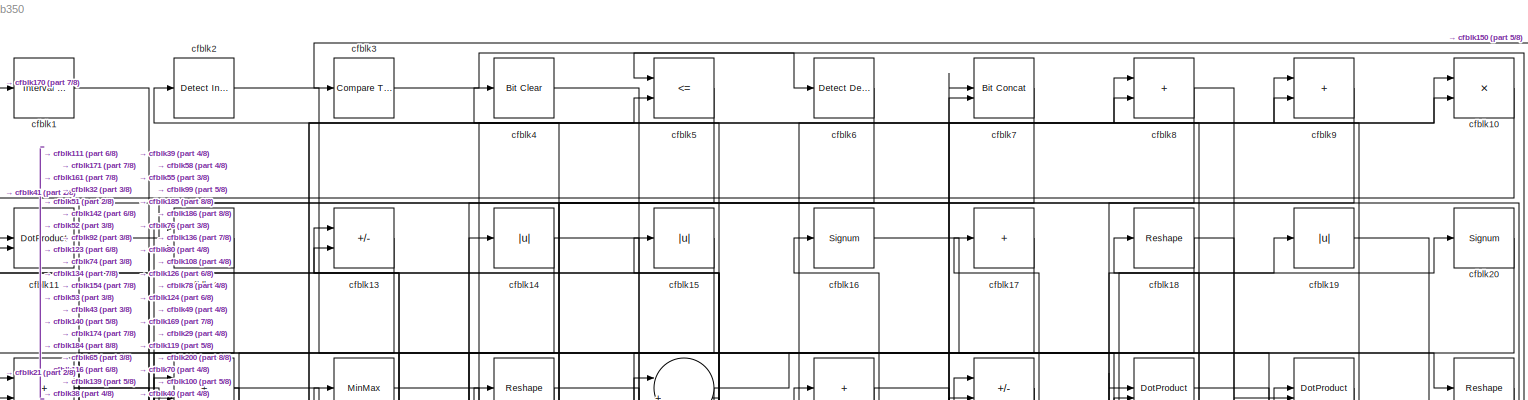
[diagram: root canvas - part 1/8, full width, top band]
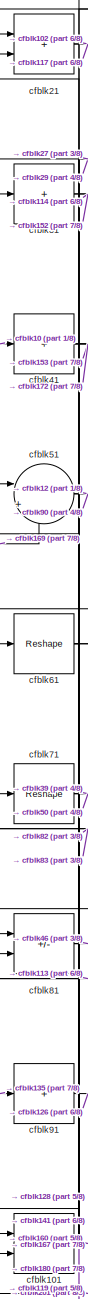
[diagram: root canvas - part 2/8, top left region]
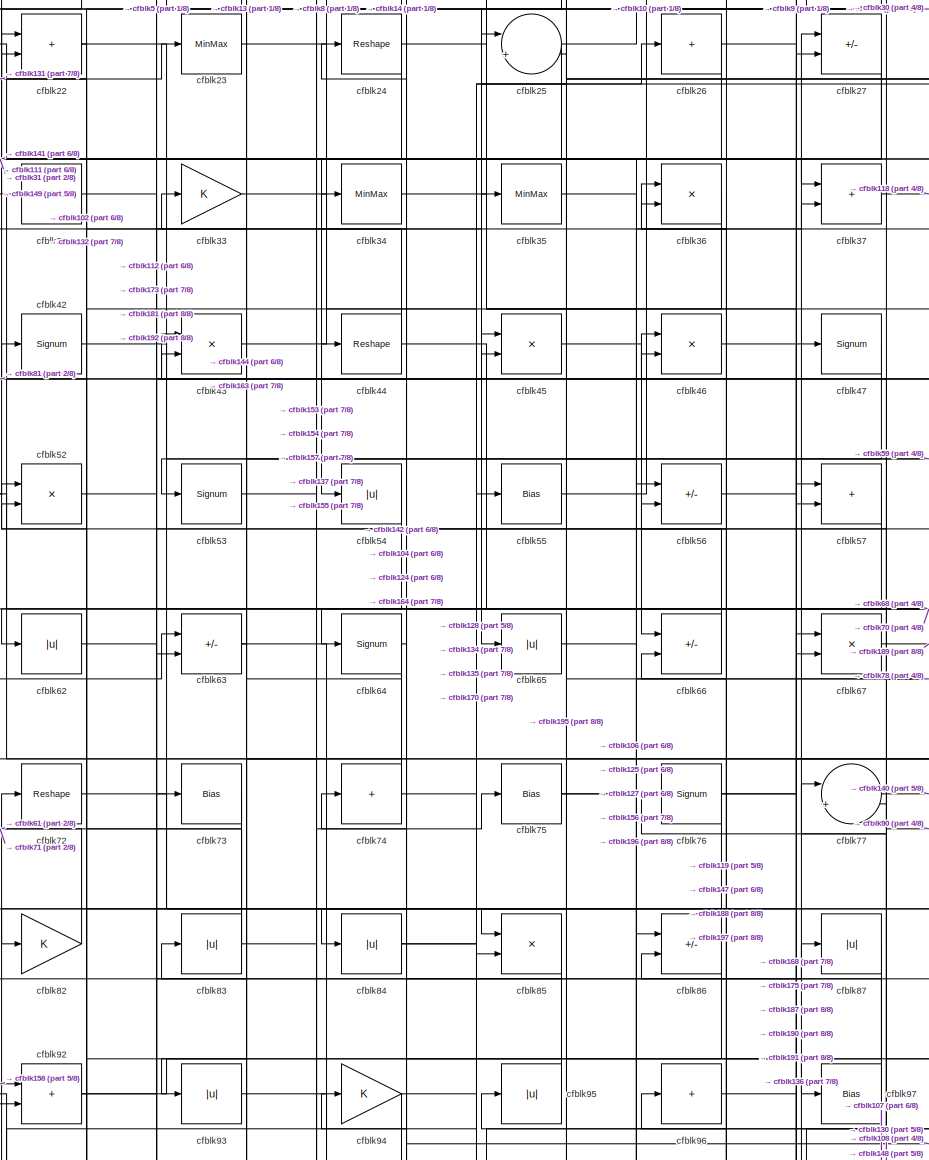
[diagram: root canvas - part 3/8, top center region]
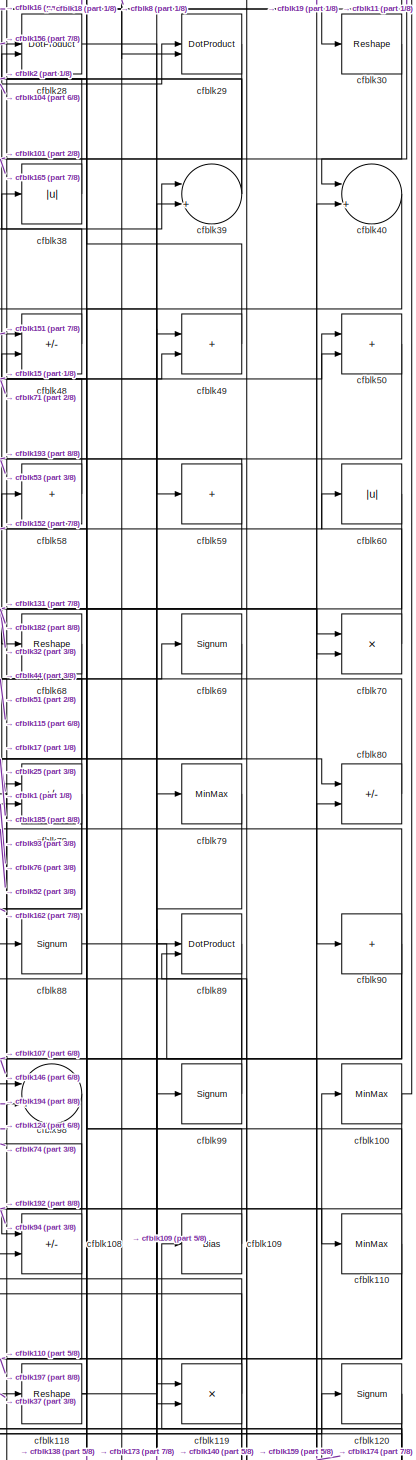
[diagram: root canvas - part 4/8, middle right region]
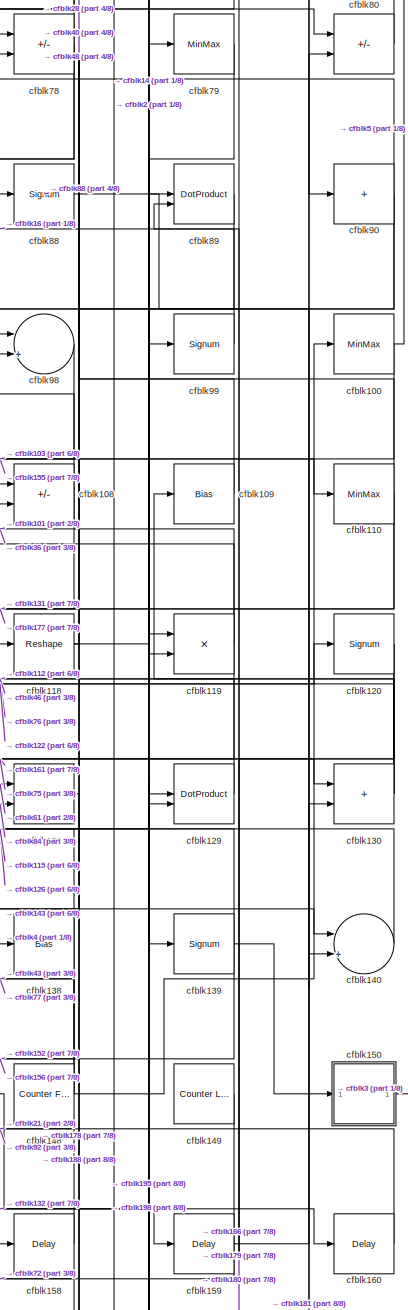
[diagram: root canvas - part 5/8, middle right region]
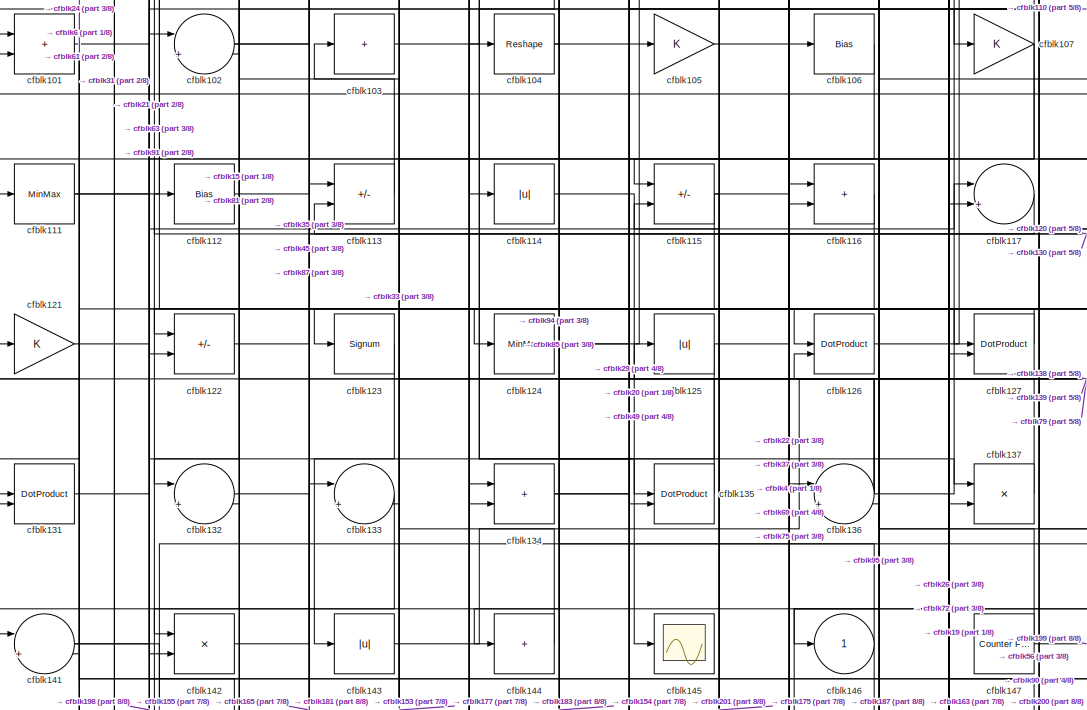
[diagram: root canvas - part 6/8, central region]
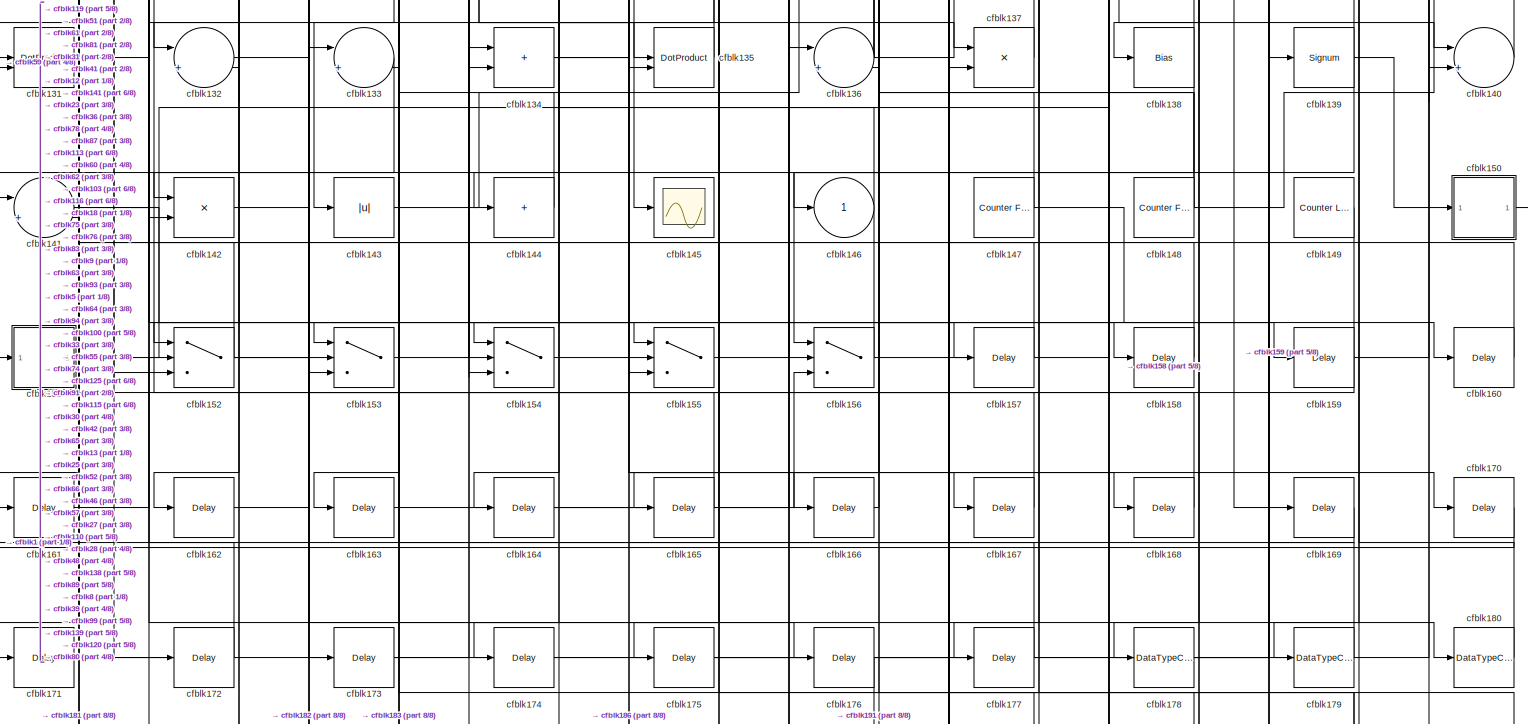
[diagram: root canvas - part 7/8, full width, bottom band]
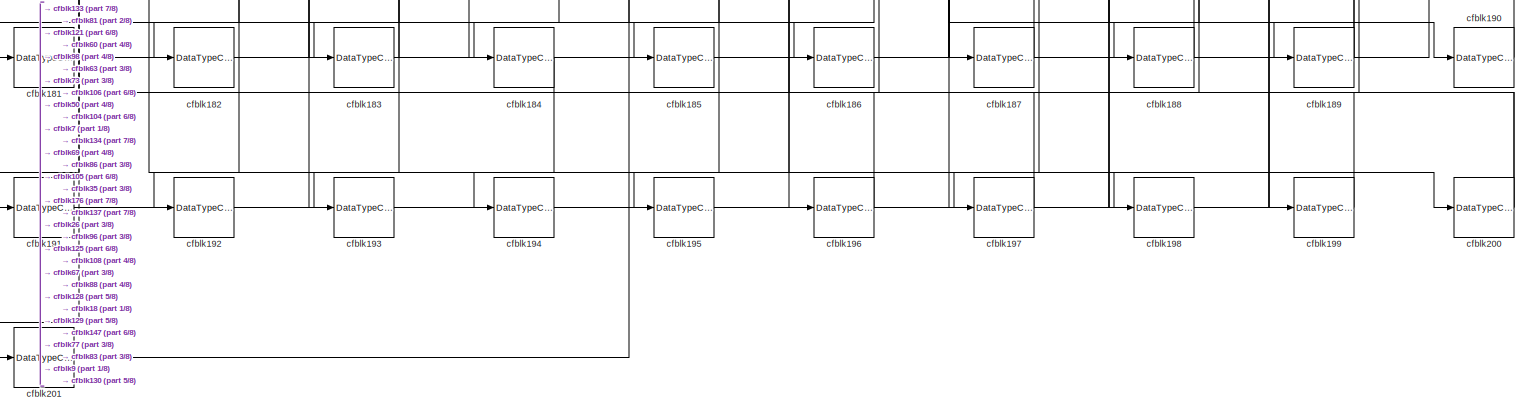
[diagram: root canvas - part 8/8, full width, bottom band]
MODEL slx_3f8519a2b350
KIND model
CONFIG AbsTol = auto
CONFIG EnableMultiTasking = off
CONFIG FixedStep = auto
CONFIG MaxStep = auto
CONFIG MinStep = auto
CONFIG RelTol = 1e-3
CONFIG SampleTimeConstraint = Unconstrained
CONFIG SolverName = VariableStepAuto
CONFIG StartTime = 0.0
CONFIG StopTime = 10.0
BLOCK [Reference] cfblk1  REF=hdlsllib/Logic and Bit
Operations/Interval Test
  SourceBlock = hdlsllib/Logic and Bit\nOperations/Interval Test
  SourceType = Interval Test
BLOCK [Product] cfblk10
  Inputs = */
  RndMeth = Zero
  SaturateOnIntegerOverflow = on
BLOCK [MinMax] cfblk100
BLOCK [Sum] cfblk101
  IconShape = rectangular
BLOCK [Sum] cfblk102
  Inputs = |++
BLOCK [Sum] cfblk103
  IconShape = rectangular
  Inputs = +
BLOCK [Reshape] cfblk104
BLOCK [Gain] cfblk105
BLOCK [Bias] cfblk106
  Bias = 0.0
  SaturateOnIntegerOverflow = off
BLOCK [Gain] cfblk107
BLOCK [Sum] cfblk108
  IconShape = rectangular
  Inputs = +-
BLOCK [Bias] cfblk109
  Bias = 0.0
  SaturateOnIntegerOverflow = off
BLOCK [DotProduct] cfblk11
  OutDataTypeStr = Inherit: Inherit via internal rule
BLOCK [MinMax] cfblk110
BLOCK [MinMax] cfblk111
BLOCK [Bias] cfblk112
  Bias = 0.0
  SaturateOnIntegerOverflow = off
BLOCK [Sum] cfblk113
  IconShape = rectangular
  Inputs = +-
BLOCK [Abs] cfblk114
  SaturateOnIntegerOverflow = off
BLOCK [Sum] cfblk115
  IconShape = rectangular
  Inputs = +-
BLOCK [Sum] cfblk116
  IconShape = rectangular
BLOCK [Sum] cfblk117
  Inputs = |++
BLOCK [Reshape] cfblk118
BLOCK [Product] cfblk119
  Inputs = */
  RndMeth = Zero
  SaturateOnIntegerOverflow = on
BLOCK [Product] cfblk12
  Inputs = */
  RndMeth = Zero
  SaturateOnIntegerOverflow = on
BLOCK [Signum] cfblk120
BLOCK [Gain] cfblk121
BLOCK [Sum] cfblk122
  IconShape = rectangular
  Inputs = +-
BLOCK [Signum] cfblk123
BLOCK [MinMax] cfblk124
BLOCK [Abs] cfblk125
  SaturateOnIntegerOverflow = off
BLOCK [DotProduct] cfblk126
  OutDataTypeStr = Inherit: Inherit via internal rule
BLOCK [DotProduct] cfblk127
  OutDataTypeStr = Inherit: Inherit via internal rule
BLOCK [Sum] cfblk128
  IconShape = rectangular
BLOCK [DotProduct] cfblk129
  OutDataTypeStr = Inherit: Inherit via internal rule
BLOCK [Sum] cfblk13
  IconShape = rectangular
  Inputs = +-
BLOCK [Sum] cfblk130
  IconShape = rectangular
BLOCK [DotProduct] cfblk131
  OutDataTypeStr = Inherit: Inherit via internal rule
BLOCK [Sum] cfblk132
  Inputs = |++
BLOCK [Sum] cfblk133
  Inputs = |++
BLOCK [Sum] cfblk134
  IconShape = rectangular
BLOCK [DotProduct] cfblk135
  OutDataTypeStr = Inherit: Inherit via internal rule
BLOCK [Sum] cfblk136
  Inputs = |++
BLOCK [Product] cfblk137
  Inputs = */
  RndMeth = Zero
  SaturateOnIntegerOverflow = on
BLOCK [Bias] cfblk138
  Bias = 0.0
  SaturateOnIntegerOverflow = off
BLOCK [Signum] cfblk139
BLOCK [Abs] cfblk14
  SaturateOnIntegerOverflow = off
BLOCK [Sum] cfblk140
  Inputs = |++
BLOCK [Sum] cfblk141
  Inputs = |++
BLOCK [Product] cfblk142
  Inputs = */
  RndMeth = Zero
  SaturateOnIntegerOverflow = on
BLOCK [Abs] cfblk143
  SaturateOnIntegerOverflow = off
BLOCK [Sum] cfblk144
  IconShape = rectangular
  Inputs = +
BLOCK [Scope] cfblk145
  Floating = off
  NumInputPorts = 1
  ScopeSpecificationString = Simulink.scopes.TimeScopeBlockCfg('CurrentConfiguration', extmgr.ConfigurationSet(extmgr.Configuration('Core','General UI',true),extmgr.Configuration('Core','Source UI',true),extmgr.Configuration('Sources','WiredSimulink',true,'DataLoggingVariableName','ScopeData2','DataLoggingSaveFormat','Array','DataLoggingLimitDataPoints',true,'DataLoggingDecimation','1'),extmgr.Configuration('Visuals','Time Do...<+868ch>
BLOCK [Outport] cfblk146
  VectorParamsAs1DForOutWhenUnconnected = off
BLOCK [Reference] cfblk147  REF=hdlsllib/Sources/Counter
Free-Running
  SourceBlock = hdlsllib/Sources/Counter\nFree-Running
  SourceType = Counter Free-Running
BLOCK [Reference] cfblk148  REF=hdlsllib/Sources/Counter
Free-Running
  SourceBlock = hdlsllib/Sources/Counter\nFree-Running
  SourceType = Counter Free-Running
BLOCK [Reference] cfblk149  REF=hdlsllib/Sources/Counter
Limited
  SourceBlock = hdlsllib/Sources/Counter\nLimited
  SourceType = Counter Limited
BLOCK [Abs] cfblk15
  SaturateOnIntegerOverflow = off
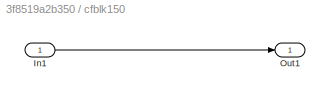
BLOCK [SubSystem] cfblk150
  LibrarySourceBlock = hdlsllib/Ports &\nSubsystems/Subsystem
BLOCK [Inport] cfblk150/In1
BLOCK [Outport] cfblk150/Out1
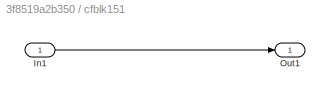
BLOCK [SubSystem] cfblk151
  LibrarySourceBlock = hdlsllib/Ports &\nSubsystems/Subsystem
BLOCK [Inport] cfblk151/In1
BLOCK [Outport] cfblk151/Out1
BLOCK [Switch] cfblk152
  InputSameDT = off
  SaturateOnIntegerOverflow = off
BLOCK [Switch] cfblk153
  InputSameDT = off
  SaturateOnIntegerOverflow = off
BLOCK [Switch] cfblk154
  InputSameDT = off
  SaturateOnIntegerOverflow = off
BLOCK [Switch] cfblk155
  InputSameDT = off
  SaturateOnIntegerOverflow = off
BLOCK [Switch] cfblk156
  InputSameDT = off
  SaturateOnIntegerOverflow = off
BLOCK [Delay] cfblk157
  InputPortMap = u0
  SampleTime = 1
BLOCK [Delay] cfblk158
  InputPortMap = u0
  SampleTime = 1
BLOCK [Delay] cfblk159
  InputPortMap = u0
  SampleTime = 1
BLOCK [Signum] cfblk16
BLOCK [Delay] cfblk160
  InputPortMap = u0
  SampleTime = 1
BLOCK [Delay] cfblk161
  InputPortMap = u0
  SampleTime = 1
BLOCK [Delay] cfblk162
  InputPortMap = u0
  SampleTime = 1
BLOCK [Delay] cfblk163
  InputPortMap = u0
  SampleTime = 1
BLOCK [Delay] cfblk164
  InputPortMap = u0
  SampleTime = 1
BLOCK [Delay] cfblk165
  InputPortMap = u0
  SampleTime = 1
BLOCK [Delay] cfblk166
  InputPortMap = u0
  SampleTime = 1
BLOCK [Delay] cfblk167
  InputPortMap = u0
  SampleTime = 1
BLOCK [Delay] cfblk168
  InputPortMap = u0
  SampleTime = 1
BLOCK [Delay] cfblk169
  InputPortMap = u0
  SampleTime = 1
BLOCK [Sum] cfblk17
  IconShape = rectangular
  Inputs = +
BLOCK [Delay] cfblk170
  InputPortMap = u0
  SampleTime = 1
BLOCK [Delay] cfblk171
  InputPortMap = u0
  SampleTime = 1
BLOCK [Delay] cfblk172
  InputPortMap = u0
  SampleTime = 1
BLOCK [Delay] cfblk173
  InputPortMap = u0
  SampleTime = 1
BLOCK [Delay] cfblk174
  InputPortMap = u0
  SampleTime = 1
BLOCK [Delay] cfblk175
  InputPortMap = u0
  SampleTime = 1
BLOCK [Delay] cfblk176
  InputPortMap = u0
  SampleTime = 1
BLOCK [Delay] cfblk177
  InputPortMap = u0
  SampleTime = 1
BLOCK [DataTypeConversion] cfblk178
  OutDataTypeStr = uint8
  RndMeth = Floor
  SaturateOnIntegerOverflow = off
BLOCK [DataTypeConversion] cfblk179
  OutDataTypeStr = uint8
  RndMeth = Floor
  SaturateOnIntegerOverflow = off
BLOCK [Reshape] cfblk18
BLOCK [DataTypeConversion] cfblk180
  OutDataTypeStr = uint8
  RndMeth = Floor
  SaturateOnIntegerOverflow = off
BLOCK [DataTypeConversion] cfblk181
  RndMeth = Floor
  SaturateOnIntegerOverflow = off
BLOCK [DataTypeConversion] cfblk182
  OutDataTypeStr = uint8
  RndMeth = Floor
  SaturateOnIntegerOverflow = off
BLOCK [DataTypeConversion] cfblk183
  OutDataTypeStr = uint8
  RndMeth = Floor
  SaturateOnIntegerOverflow = off
BLOCK [DataTypeConversion] cfblk184
  OutDataTypeStr = uint8
  RndMeth = Floor
  SaturateOnIntegerOverflow = off
BLOCK [DataTypeConversion] cfblk185
  OutDataTypeStr = uint8
  RndMeth = Floor
  SaturateOnIntegerOverflow = off
BLOCK [DataTypeConversion] cfblk186
  OutDataTypeStr = uint8
  RndMeth = Floor
  SaturateOnIntegerOverflow = off
BLOCK [DataTypeConversion] cfblk187
  OutDataTypeStr = uint8
  RndMeth = Floor
  SaturateOnIntegerOverflow = off
BLOCK [DataTypeConversion] cfblk188
  OutDataTypeStr = uint8
  RndMeth = Floor
  SaturateOnIntegerOverflow = off
BLOCK [DataTypeConversion] cfblk189
  RndMeth = Floor
  SaturateOnIntegerOverflow = off
BLOCK [Abs] cfblk19
  SaturateOnIntegerOverflow = off
BLOCK [DataTypeConversion] cfblk190
  OutDataTypeStr = uint8
  RndMeth = Floor
  SaturateOnIntegerOverflow = off
BLOCK [DataTypeConversion] cfblk191
  OutDataTypeStr = uint8
  RndMeth = Floor
  SaturateOnIntegerOverflow = off
BLOCK [DataTypeConversion] cfblk192
  RndMeth = Floor
  SaturateOnIntegerOverflow = off
BLOCK [DataTypeConversion] cfblk193
  OutDataTypeStr = uint8
  RndMeth = Floor
  SaturateOnIntegerOverflow = off
BLOCK [DataTypeConversion] cfblk194
  OutDataTypeStr = uint8
  RndMeth = Floor
  SaturateOnIntegerOverflow = off
BLOCK [DataTypeConversion] cfblk195
  OutDataTypeStr = uint8
  RndMeth = Floor
  SaturateOnIntegerOverflow = off
BLOCK [DataTypeConversion] cfblk196
  OutDataTypeStr = uint8
  RndMeth = Floor
  SaturateOnIntegerOverflow = off
BLOCK [DataTypeConversion] cfblk197
  OutDataTypeStr = uint8
  RndMeth = Floor
  SaturateOnIntegerOverflow = off
BLOCK [DataTypeConversion] cfblk198
  OutDataTypeStr = uint8
  RndMeth = Floor
  SaturateOnIntegerOverflow = off
BLOCK [DataTypeConversion] cfblk199
  OutDataTypeStr = uint8
  RndMeth = Floor
  SaturateOnIntegerOverflow = off
BLOCK [Reference] cfblk2  REF=simulink/Logic and Bit
Operations/Detect
Increase
  LibrarySourceBlock = hdlsllib/Logic and Bit\nOperations/Detect\nIncrease
  SourceBlock = simulink/Logic and Bit\nOperations/Detect\nIncrease
  SourceType = Detect Increase
BLOCK [Signum] cfblk20
BLOCK [DataTypeConversion] cfblk200
  RndMeth = Floor
  SaturateOnIntegerOverflow = off
BLOCK [DataTypeConversion] cfblk201
  OutDataTypeStr = uint8
  RndMeth = Floor
  SaturateOnIntegerOverflow = off
BLOCK [Sum] cfblk21
  IconShape = rectangular
BLOCK [Sum] cfblk22
  IconShape = rectangular
BLOCK [MinMax] cfblk23
BLOCK [Reshape] cfblk24
BLOCK [Sum] cfblk25
  Inputs = |++
BLOCK [Sum] cfblk26
  IconShape = rectangular
  Inputs = +
BLOCK [Sum] cfblk27
  IconShape = rectangular
  Inputs = +-
BLOCK [DotProduct] cfblk28
  OutDataTypeStr = Inherit: Inherit via internal rule
BLOCK [DotProduct] cfblk29
  OutDataTypeStr = Inherit: Inherit via internal rule
BLOCK [Reference] cfblk3  REF=hdlsllib/Logic and Bit
Operations/Compare
To Constant
  SourceBlock = hdlsllib/Logic and Bit\nOperations/Compare\nTo Constant
  SourceType = Compare To Constant
BLOCK [Reshape] cfblk30
BLOCK [Sum] cfblk31
  IconShape = rectangular
  Inputs = +
BLOCK [MinMax] cfblk32
BLOCK [Gain] cfblk33
BLOCK [MinMax] cfblk34
BLOCK [MinMax] cfblk35
BLOCK [Product] cfblk36
  Inputs = */
  RndMeth = Zero
  SaturateOnIntegerOverflow = on
BLOCK [Sum] cfblk37
  IconShape = rectangular
BLOCK [Abs] cfblk38
  SaturateOnIntegerOverflow = off
BLOCK [Sum] cfblk39
  Inputs = |++
BLOCK [Reference] cfblk4  REF=simulink/Logic and Bit
Operations/Bit Clear
  LibrarySourceBlock = hdlsllib/Logic and Bit\nOperations/Bit Clear
  SourceBlock = simulink/Logic and Bit\nOperations/Bit Clear
  SourceType = Bit Clear
BLOCK [Sum] cfblk40
  Inputs = |++
BLOCK [Sum] cfblk41
  IconShape = rectangular
  Inputs = +
BLOCK [Signum] cfblk42
BLOCK [Product] cfblk43
  Inputs = */
  RndMeth = Zero
  SaturateOnIntegerOverflow = on
BLOCK [Reshape] cfblk44
BLOCK [Product] cfblk45
  Inputs = */
  RndMeth = Zero
  SaturateOnIntegerOverflow = on
BLOCK [Product] cfblk46
  Inputs = */
  RndMeth = Zero
  SaturateOnIntegerOverflow = on
BLOCK [Signum] cfblk47
BLOCK [Sum] cfblk48
  IconShape = rectangular
  Inputs = +-
BLOCK [Sum] cfblk49
  IconShape = rectangular
BLOCK [RelationalOperator] cfblk5
  InputSameDT = off
  Operator = <=
  OutDataTypeStr = boolean
BLOCK [Sum] cfblk50
  IconShape = rectangular
BLOCK [Sum] cfblk51
  Inputs = |++
BLOCK [Product] cfblk52
  Inputs = */
  RndMeth = Zero
  SaturateOnIntegerOverflow = on
BLOCK [Signum] cfblk53
BLOCK [Abs] cfblk54
  SaturateOnIntegerOverflow = off
BLOCK [Bias] cfblk55
  Bias = 0.0
  SaturateOnIntegerOverflow = off
BLOCK [Sum] cfblk56
  IconShape = rectangular
  Inputs = +-
BLOCK [Sum] cfblk57
  IconShape = rectangular
BLOCK [Sum] cfblk58
  IconShape = rectangular
  Inputs = +
BLOCK [Sum] cfblk59
  IconShape = rectangular
  Inputs = +
BLOCK [Reference] cfblk6  REF=simulink/Logic and Bit
Operations/Detect
Decrease
  LibrarySourceBlock = hdlsllib/Logic and Bit\nOperations/Detect\nDecrease
  SourceBlock = simulink/Logic and Bit\nOperations/Detect\nDecrease
  SourceType = Detect Decrease
BLOCK [Abs] cfblk60
  SaturateOnIntegerOverflow = off
BLOCK [Reshape] cfblk61
BLOCK [Abs] cfblk62
  SaturateOnIntegerOverflow = off
BLOCK [Sum] cfblk63
  IconShape = rectangular
  Inputs = +-
BLOCK [Signum] cfblk64
BLOCK [Abs] cfblk65
  SaturateOnIntegerOverflow = off
BLOCK [Sum] cfblk66
  IconShape = rectangular
  Inputs = +-
BLOCK [Product] cfblk67
  Inputs = */
  RndMeth = Zero
  SaturateOnIntegerOverflow = on
BLOCK [Reshape] cfblk68
BLOCK [Signum] cfblk69
BLOCK [Reference] cfblk7  REF=hdlsllib/Logic and Bit
Operations/Bit Concat
  SourceBlock = hdlsllib/Logic and Bit\nOperations/Bit Concat
  SourceType = Bit Concat
BLOCK [Product] cfblk70
  Inputs = */
  RndMeth = Zero
  SaturateOnIntegerOverflow = on
BLOCK [Reshape] cfblk71
BLOCK [Reshape] cfblk72
BLOCK [Bias] cfblk73
  Bias = 0.0
  SaturateOnIntegerOverflow = off
BLOCK [Sum] cfblk74
  IconShape = rectangular
  Inputs = +
BLOCK [Bias] cfblk75
  Bias = 0.0
  SaturateOnIntegerOverflow = off
BLOCK [Signum] cfblk76
BLOCK [Sum] cfblk77
  Inputs = |++
BLOCK [Sum] cfblk78
  IconShape = rectangular
  Inputs = +-
BLOCK [MinMax] cfblk79
BLOCK [Sum] cfblk8
  IconShape = rectangular
BLOCK [Sum] cfblk80
  IconShape = rectangular
  Inputs = +-
BLOCK [Sum] cfblk81
  IconShape = rectangular
  Inputs = +-
BLOCK [Gain] cfblk82
BLOCK [Abs] cfblk83
  SaturateOnIntegerOverflow = off
BLOCK [Abs] cfblk84
  SaturateOnIntegerOverflow = off
BLOCK [Product] cfblk85
  Inputs = */
  RndMeth = Zero
  SaturateOnIntegerOverflow = on
BLOCK [Sum] cfblk86
  IconShape = rectangular
  Inputs = +-
BLOCK [Abs] cfblk87
  SaturateOnIntegerOverflow = off
BLOCK [Signum] cfblk88
BLOCK [DotProduct] cfblk89
  OutDataTypeStr = Inherit: Inherit via internal rule
BLOCK [Sum] cfblk9
  IconShape = rectangular
BLOCK [Sum] cfblk90
  IconShape = rectangular
  Inputs = +
BLOCK [Sum] cfblk91
  IconShape = rectangular
  Inputs = +
BLOCK [Sum] cfblk92
  IconShape = rectangular
BLOCK [Abs] cfblk93
  SaturateOnIntegerOverflow = off
BLOCK [Gain] cfblk94
BLOCK [Abs] cfblk95
  SaturateOnIntegerOverflow = off
BLOCK [Sum] cfblk96
  IconShape = rectangular
  Inputs = +
BLOCK [Bias] cfblk97
  Bias = 0.0
  SaturateOnIntegerOverflow = off
BLOCK [Sum] cfblk98
  Inputs = |++
BLOCK [Signum] cfblk99
NET cfblk100:1 -> cfblk155:3, cfblk5:1
LINE cfblk101:1 -> cfblk160:1
NET cfblk102:1 -> cfblk45:1, cfblk45:2
LINE cfblk103:1 -> cfblk110:1
NET cfblk104:1 -> cfblk24:1, cfblk29:1
LINE cfblk105:1 -> cfblk200:1
LINE cfblk106:1 -> cfblk183:1
NET cfblk107:1 -> cfblk115:1, cfblk122:2, cfblk56:2
NET cfblk108:1 -> cfblk197:1, cfblk74:1
LINE cfblk109:1 -> cfblk48:2
LINE cfblk10:1 -> cfblk41:1
NET cfblk110:1 -> cfblk131:1, cfblk177:1, cfblk28:2
NET cfblk111:1 -> cfblk63:1, cfblk85:2
LINE cfblk112:1 -> cfblk87:1
LINE cfblk113:1 -> cfblk81:1
LINE cfblk114:1 -> cfblk145:1
NET cfblk115:1 -> cfblk144:1, cfblk175:1, cfblk69:1
LINE cfblk116:1 -> cfblk153:1
LINE cfblk117:1 -> cfblk113:2
NET cfblk118:1 -> cfblk49:1, cfblk58:1
NET cfblk119:1 -> cfblk101:2, cfblk161:1, cfblk36:2
LINE cfblk11:1 -> cfblk40:1
NET cfblk120:1 -> cfblk166:1, cfblk179:1
LINE cfblk121:1 -> cfblk198:1
LINE cfblk122:1 -> cfblk120:1
LINE cfblk123:1 -> cfblk143:1
NET cfblk124:1 -> cfblk20:1, cfblk49:2
NET cfblk125:1 -> cfblk154:1, cfblk37:2
LINE cfblk126:1 -> cfblk19:1
LINE cfblk127:1 -> cfblk122:1
LINE cfblk128:1 -> cfblk188:1
LINE cfblk129:1 -> cfblk109:1
LINE cfblk12:1 -> cfblk21:1
NET cfblk130:1 -> cfblk112:1, cfblk46:1, cfblk76:1
LINE cfblk131:1 -> cfblk23:1
LINE cfblk132:1 -> cfblk159:1
LINE cfblk133:1 -> cfblk181:1
NET cfblk134:1 -> cfblk186:1, cfblk55:1
LINE cfblk135:1 -> cfblk91:1
NET cfblk136:1 -> cfblk13:2, cfblk25:2, cfblk27:1, cfblk52:2
LINE cfblk137:1 -> cfblk36:1
NET cfblk138:1 -> cfblk115:2, cfblk156:1
NET cfblk139:1 -> cfblk126:2, cfblk150:1, cfblk152:1
LINE cfblk13:1 -> cfblk171:1
LINE cfblk140:1 -> cfblk4:1
NET cfblk141:1 -> cfblk117:1, cfblk155:1
LINE cfblk142:1 -> cfblk35:1
LINE cfblk143:1 -> cfblk79:1
LINE cfblk144:1 -> cfblk33:1
NET cfblk147:1 -> cfblk199:1, cfblk95:1
NET cfblk148:1 -> cfblk100:1, cfblk43:1, cfblk77:1
LINE cfblk149:1 -> cfblk72:1
NET cfblk14:1 -> cfblk139:1, cfblk32:1
LINE cfblk150/In1:1 -> cfblk150/Out1:1
LINE cfblk150:1 -> cfblk3:1
LINE cfblk151/In1:1 -> cfblk151/Out1:1
LINE cfblk151:1 -> cfblk48:1
NET cfblk152:1 -> cfblk176:1, cfblk51:1, cfblk60:1
LINE cfblk153:1 -> cfblk75:1
LINE cfblk154:1 -> cfblk167:1
LINE cfblk155:1 -> cfblk158:1
NET cfblk156:1 -> cfblk28:1, cfblk94:1
LINE cfblk157:1 -> cfblk57:1
LINE cfblk158:1 -> cfblk92:1
LINE cfblk159:1 -> cfblk40:2
LINE cfblk15:1 -> cfblk142:1
LINE cfblk160:1 -> cfblk21:2
LINE cfblk161:1 -> cfblk12:2
LINE cfblk162:1 -> cfblk153:2
LINE cfblk163:1 -> cfblk116:1
LINE cfblk164:1 -> cfblk156:3
LINE cfblk165:1 -> cfblk113:1
LINE cfblk166:1 -> cfblk136:2
LINE cfblk167:1 -> cfblk81:2
LINE cfblk168:1 -> cfblk66:2
LINE cfblk169:1 -> cfblk51:2
LINE cfblk16:1 -> cfblk78:1
LINE cfblk170:1 -> cfblk1:1
LINE cfblk171:1 -> cfblk134:1
LINE cfblk172:1 -> cfblk152:2
LINE cfblk173:1 -> cfblk39:2
LINE cfblk174:1 -> cfblk80:2
LINE cfblk175:1 -> cfblk27:2
LINE cfblk176:1 -> cfblk191:1
LINE cfblk177:1 -> cfblk103:1
LINE cfblk178:1 -> cfblk99:1
LINE cfblk179:1 -> cfblk89:1
LINE cfblk17:1 -> cfblk65:1
LINE cfblk180:1 -> cfblk89:2
NET cfblk181:1 -> cfblk104:1, cfblk130:2, cfblk137:2, cfblk73:1
LINE cfblk182:1 -> cfblk133:1
LINE cfblk183:1 -> cfblk133:2
LINE cfblk184:1 -> cfblk194:1
LINE cfblk185:1 -> cfblk7:1
LINE cfblk186:1 -> cfblk7:2
LINE cfblk187:1 -> cfblk125:1
LINE cfblk188:1 -> cfblk96:1
NET cfblk189:1 -> cfblk77:2, cfblk83:1
NET cfblk18:1 -> cfblk134:2, cfblk29:2
LINE cfblk190:1 -> cfblk67:1
LINE cfblk191:1 -> cfblk67:2
NET cfblk192:1 -> cfblk63:2, cfblk88:1
LINE cfblk193:1 -> cfblk98:1
LINE cfblk194:1 -> cfblk98:2
LINE cfblk195:1 -> cfblk129:2
LINE cfblk196:1 -> cfblk86:1
LINE cfblk197:1 -> cfblk86:2
LINE cfblk198:1 -> cfblk129:1
LINE cfblk199:1 -> cfblk121:1
LINE cfblk19:1 -> cfblk70:1
LINE cfblk1:1 -> cfblk80:1
NET cfblk200:1 -> cfblk18:1, cfblk9:2
LINE cfblk201:1 -> cfblk105:1
LINE cfblk20:1 -> cfblk123:1
NET cfblk21:1 -> cfblk102:1, cfblk117:2
NET cfblk22:1 -> cfblk106:1, cfblk62:1
LINE cfblk23:1 -> cfblk37:1
NET cfblk24:1 -> cfblk141:1, cfblk56:1
NET cfblk25:1 -> cfblk30:1, cfblk54:1
NET cfblk26:1 -> cfblk102:2, cfblk190:1
NET cfblk27:1 -> cfblk31:1, cfblk92:2
LINE cfblk28:1 -> cfblk59:1
LINE cfblk29:1 -> cfblk101:1
LINE cfblk2:1 -> cfblk119:1
LINE cfblk30:1 -> cfblk165:1
NET cfblk31:1 -> cfblk114:1, cfblk152:3
LINE cfblk32:1 -> cfblk70:2
LINE cfblk33:1 -> cfblk135:2
LINE cfblk34:1 -> cfblk57:2
LINE cfblk35:1 -> cfblk196:1
LINE cfblk36:1 -> cfblk132:1
LINE cfblk37:1 -> cfblk118:1
LINE cfblk38:1 -> cfblk2:1
NET cfblk39:1 -> cfblk11:1, cfblk11:2
LINE cfblk3:1 -> cfblk6:1
LINE cfblk40:1 -> cfblk138:1
NET cfblk41:1 -> cfblk135:1, cfblk153:3, cfblk172:1
LINE cfblk42:1 -> cfblk156:2
LINE cfblk43:1 -> cfblk8:1
NET cfblk44:1 -> cfblk22:2, cfblk68:1
LINE cfblk45:1 -> cfblk66:1
LINE cfblk46:1 -> cfblk168:1
LINE cfblk47:1 -> cfblk85:1
LINE cfblk48:1 -> cfblk38:1
LINE cfblk49:1 -> cfblk8:2
LINE cfblk4:1 -> cfblk116:2
LINE cfblk50:1 -> cfblk193:1
NET cfblk51:1 -> cfblk12:1, cfblk90:1
LINE cfblk52:1 -> cfblk5:2
LINE cfblk53:1 -> cfblk14:1
LINE cfblk54:1 -> cfblk64:1
LINE cfblk55:1 -> cfblk10:1
LINE cfblk56:1 -> cfblk47:1
LINE cfblk57:1 -> cfblk84:1
LINE cfblk58:1 -> cfblk15:1
NET cfblk59:1 -> cfblk131:2, cfblk53:1
LINE cfblk5:1 -> cfblk174:1
LINE cfblk60:1 -> cfblk182:1
NET cfblk61:1 -> cfblk128:1, cfblk141:2, cfblk180:1
LINE cfblk62:1 -> cfblk173:1
NET cfblk63:1 -> cfblk137:1, cfblk43:2
NET cfblk64:1 -> cfblk163:1, cfblk164:1
LINE cfblk65:1 -> cfblk136:1
LINE cfblk66:1 -> cfblk44:1
LINE cfblk67:1 -> cfblk189:1
LINE cfblk68:1 -> cfblk93:1
LINE cfblk69:1 -> cfblk185:1
LINE cfblk6:1 -> cfblk111:1
LINE cfblk70:1 -> cfblk50:1
NET cfblk71:1 -> cfblk39:1, cfblk50:2
LINE cfblk72:1 -> cfblk127:2
LINE cfblk73:1 -> cfblk82:1
NET cfblk74:1 -> cfblk13:1, cfblk170:1
NET cfblk75:1 -> cfblk127:1, cfblk130:1
NET cfblk76:1 -> cfblk154:3, cfblk78:2, cfblk9:1
LINE cfblk77:1 -> cfblk140:1
NET cfblk78:1 -> cfblk151:1, cfblk162:1, cfblk25:1
LINE cfblk79:1 -> cfblk119:2
LINE cfblk7:1 -> cfblk184:1
LINE cfblk80:1 -> cfblk17:1
NET cfblk81:1 -> cfblk201:1, cfblk46:2
LINE cfblk82:1 -> cfblk61:1
NET cfblk83:1 -> cfblk157:1, cfblk22:1, cfblk71:1
NET cfblk84:1 -> cfblk128:2, cfblk26:1
LINE cfblk85:1 -> cfblk124:1
LINE cfblk86:1 -> cfblk195:1
LINE cfblk87:1 -> cfblk132:2
LINE cfblk88:1 -> cfblk140:2
LINE cfblk89:1 -> cfblk178:1
NET cfblk8:1 -> cfblk108:2, cfblk169:1
NET cfblk90:1 -> cfblk107:1, cfblk146:1, cfblk52:1
LINE cfblk91:1 -> cfblk126:1
NET cfblk92:1 -> cfblk10:2, cfblk97:1
LINE cfblk93:1 -> cfblk155:2
NET cfblk94:1 -> cfblk108:1, cfblk142:2
LINE cfblk95:1 -> cfblk42:1
LINE cfblk96:1 -> cfblk187:1
LINE cfblk97:1 -> cfblk34:1
LINE cfblk98:1 -> cfblk192:1
LINE cfblk99:1 -> cfblk16:1
LINE cfblk9:1 -> cfblk154:2
note: NET lines group one-source signal fan-out (src -> all destinations, sorted); 1:1 wires keep LINE
